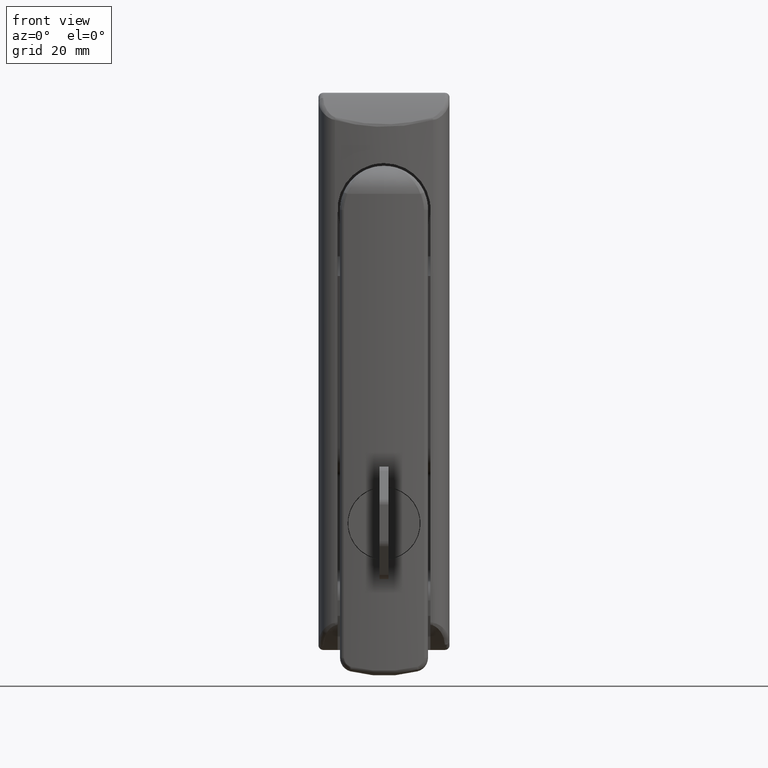
[diagram: clean part render]
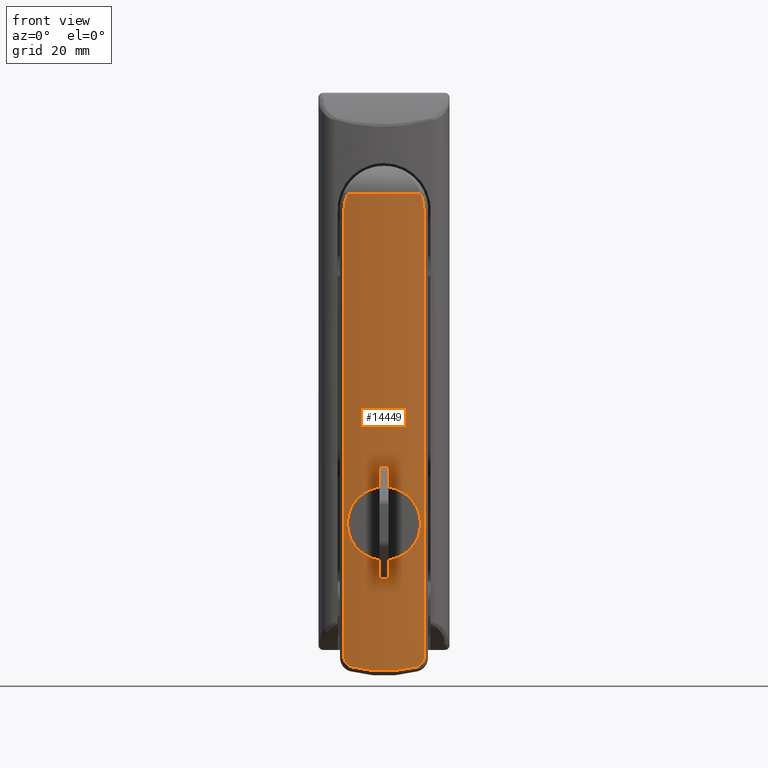
[diagram: same view with one face highlighted and labeled with its STEP entity id]
A machine part, front view. The second image highlights one B-rep face of the part: STEP entity #14449.
In plain terms, the highlighted cylindrical surface (partial cylindrical patch) has radius 60 mm, axis along (0, 0, 1).
Its self-contained STEP definition (entity closure, byte-faithful):
#14347 = VERTEX_POINT ( 'NONE', #22062 ) ;
#14349 = EDGE_CURVE ( 'NONE', #14384, #14347, #22079, .T. ) ;
#14361 = VERTEX_POINT ( 'NONE', #22122 ) ;
#14363 = EDGE_CURVE ( 'NONE', #14361, #14364, #22120, .T. ) ;
#14364 = VERTEX_POINT ( 'NONE', #22291 ) ;
#14384 = VERTEX_POINT ( 'NONE', #22207 ) ;
#14433 = EDGE_CURVE ( 'NONE', #14476, #14384, #22171, .T. ) ;
#14449 = ADVANCED_FACE ( 'NONE', ( #22356, #22355 ), #22353, .T. ) ;
#14450 = EDGE_LOOP ( 'NONE', ( #14451, #14453 ) ) ;
#14451 = ORIENTED_EDGE ( 'NONE', *, *, #14452, .F. ) ;
#14452 = EDGE_CURVE ( 'NONE', #14364, #14361, #22521, .T. ) ;
#14453 = ORIENTED_EDGE ( 'NONE', *, *, #14363, .F. ) ;
#14454 = EDGE_LOOP ( 'NONE', ( #14455, #14456, #14459, #14462, #14465, #14468, #14471, #14474, #14477 ) ) ;
#14455 = ORIENTED_EDGE ( 'NONE', *, *, #14349, .T. ) ;
#14456 = ORIENTED_EDGE ( 'NONE', *, *, #14457, .T. ) ;
#14457 = EDGE_CURVE ( 'NONE', #14347, #14458, #22522, .T. ) ;
#14458 = VERTEX_POINT ( 'NONE', #22458 ) ;
#14459 = ORIENTED_EDGE ( 'NONE', *, *, #14460, .T. ) ;
#14460 = EDGE_CURVE ( 'NONE', #14458, #14461, #22457, .T. ) ;
#14461 = VERTEX_POINT ( 'NONE', #22456 ) ;
#14462 = ORIENTED_EDGE ( 'NONE', *, *, #14464, .T. ) ;
#14463 = VERTEX_POINT ( 'NONE', #22455 ) ;
#14464 = EDGE_CURVE ( 'NONE', #14461, #14463, #22377, .T. ) ;
#14465 = ORIENTED_EDGE ( 'NONE', *, *, #14466, .T. ) ;
#14466 = EDGE_CURVE ( 'NONE', #14463, #14467, #22373, .T. ) ;
#14467 = VERTEX_POINT ( 'NONE', #22372 ) ;
#14468 = ORIENTED_EDGE ( 'NONE', *, *, #14469, .T. ) ;
#14469 = EDGE_CURVE ( 'NONE', #14467, #14470, #22446, .T. ) ;
#14470 = VERTEX_POINT ( 'NONE', #22371 ) ;
#14471 = ORIENTED_EDGE ( 'NONE', *, *, #14472, .T. ) ;
#14472 = EDGE_CURVE ( 'NONE', #14470, #14473, #22434, .T. ) ;
#14473 = VERTEX_POINT ( 'NONE', #22435 ) ;
#14474 = ORIENTED_EDGE ( 'NONE', *, *, #14475, .T. ) ;
#14475 = EDGE_CURVE ( 'NONE', #14473, #14476, #22433, .T. ) ;
#14476 = VERTEX_POINT ( 'NONE', #22515 ) ;
#14477 = ORIENTED_EDGE ( 'NONE', *, *, #14433, .T. ) ;
#21773 = CARTESIAN_POINT ( 'NONE',  ( -27.11787100293591700, -6.766868025251271000, -70.91263549066573500 ) ) ;
#21774 = CARTESIAN_POINT ( 'NONE',  ( -27.05421977766901200, -7.301004708283612900, -69.75693342376288800 ) ) ;
#21775 = CARTESIAN_POINT ( 'NONE',  ( -27.08980512825611300, -7.006723703889895700, -70.46514495383404200 ) ) ;
#21779 = CARTESIAN_POINT ( 'NONE',  ( -27.01683343835144400, -7.599279914989463900, -68.77638995952953800 ) ) ;
#21780 = CARTESIAN_POINT ( 'NONE',  ( -27.02474051801899100, -7.537300372957182600, -69.02352262754064300 ) ) ;
#21781 = CARTESIAN_POINT ( 'NONE',  ( -27.04340698613823700, -7.388390564444781800, -69.51340915960265900 ) ) ;
#21783 = CARTESIAN_POINT ( 'NONE',  ( -26.99088747816229600, -7.799635068534455800, -67.52116453693511700 ) ) ;
#21784 = CARTESIAN_POINT ( 'NONE',  ( -26.99764306470785500, -7.748583144098425600, -68.02855496580858100 ) ) ;
#21785 = CARTESIAN_POINT ( 'NONE',  ( -26.99744651862013000, -7.750083359168098900, -65.98271912644864300 ) ) ;
#21786 = CARTESIAN_POINT ( 'NONE',  ( -26.99079229069988300, -7.800361066417529800, -66.48981678743304300 ) ) ;
#21787 = CARTESIAN_POINT ( 'NONE',  ( -27.04298724013309800, -7.391769749059090300, -64.49652391511490600 ) ) ;
#21788 = CARTESIAN_POINT ( 'NONE',  ( -27.02438136217975300, -7.540133483668933300, -64.98703214651770600 ) ) ;
#21793 = CARTESIAN_POINT ( 'NONE',  ( -27.01651164701668500, -7.601797481766616300, -65.23440147297341700 ) ) ;
#21795 = CARTESIAN_POINT ( 'NONE',  ( -27.05376097270380600, -7.304741018422505200, -64.25299532304677500 ) ) ;
#21797 = CARTESIAN_POINT ( 'NONE',  ( -27.08922829495869100, -7.011606131907627500, -63.54478891864330600 ) ) ;
#21798 = CARTESIAN_POINT ( 'NONE',  ( -27.11724411078124000, -6.772376828360345200, -63.09684166632602100 ) ) ;
#21801 = CARTESIAN_POINT ( 'NONE',  ( -27.17953038254647400, -6.195189548565318600, -62.25390181002519100 ) ) ;
#21802 = CARTESIAN_POINT ( 'NONE',  ( -27.16338546205920700, -6.348279769270249100, -62.46080654831481400 ) ) ;
#21818 = CARTESIAN_POINT ( 'NONE',  ( -27.22902974148010800, -5.698728319907875300, -61.66811188794992700 ) ) ;
#21823 = CARTESIAN_POINT ( 'NONE',  ( -27.21240040461608000, -5.869919773109872500, -61.85705692926828900 ) ) ;
#21886 = CARTESIAN_POINT ( 'NONE',  ( -27.31176469672729500, -4.768159000811207800, -60.80582732110105600 ) ) ;
#21887 = CARTESIAN_POINT ( 'NONE',  ( -27.27877802638128600, -5.160202606548799600, -61.12884591638184900 ) ) ;
#22032 = CARTESIAN_POINT ( 'NONE',  ( 32.49999999993669800, -7.389644451905040300E-012, 3.399999999995630100 ) ) ;
#22062 = CARTESIAN_POINT ( 'NONE',  ( -27.50000000006329900, -7.389644451905040300E-012, 3.399999999995630100 ) ) ;
#22076 = DIRECTION ( 'NONE',  ( -1.000000000000000000, 0.0000000000000000000, 0.0000000000000000000 ) ) ;
#22077 = DIRECTION ( 'NONE',  ( 0.0000000000000000000, 0.0000000000000000000, -1.000000000000000000 ) ) ;
#22078 = AXIS2_PLACEMENT_3D ( 'NONE', #22032, #22077, #22076 ) ;
#22079 = CIRCLE ( 'NONE', #22078, 60.00000000000000000 ) ;
#22092 = CARTESIAN_POINT ( 'NONE',  ( -27.17939958509406400, -6.200831473000096000, -71.75908692896435100 ) ) ;
#22093 = CARTESIAN_POINT ( 'NONE',  ( -27.21311665318097500, -5.871473062248581300, -72.15986918590186900 ) ) ;
#22094 = CARTESIAN_POINT ( 'NONE',  ( -27.27948607680289300, -5.152042386320114400, -72.87834204396905600 ) ) ;
#22095 = CARTESIAN_POINT ( 'NONE',  ( -27.31244244180833600, -4.759634483160981600, -73.20067236749267200 ) ) ;
#22096 = CARTESIAN_POINT ( 'NONE',  ( -27.35871234207811800, -4.120698311094366200, -73.62762853398807300 ) ) ;
#22097 = CARTESIAN_POINT ( 'NONE',  ( -27.37359247457624200, -3.899204812795849900, -73.76027638655459400 ) ) ;
#22098 = CARTESIAN_POINT ( 'NONE',  ( -27.40121571737307000, -3.448946152739576400, -74.00070749497805900 ) ) ;
#22099 = CARTESIAN_POINT ( 'NONE',  ( -27.42688059758014400, -2.989070435906781700, -74.21794343199856300 ) ) ;
#22100 = CARTESIAN_POINT ( 'NONE',  ( -27.44796606205341800, -2.510201788648187100, -74.38945525715693900 ) ) ;
#22101 = CARTESIAN_POINT ( 'NONE',  ( -27.46642850682681900, -2.021682500409243600, -74.53776902569957500 ) ) ;
#22102 = CARTESIAN_POINT ( 'NONE',  ( -27.47437996735683200, -1.771217474951664300, -74.60057321537496500 ) ) ;
#22103 = CARTESIAN_POINT ( 'NONE',  ( -27.49351807082013700, -1.015699125321913200, -74.75061632840478900 ) ) ;
#22104 = CARTESIAN_POINT ( 'NONE',  ( -27.50000000006336600, -0.5092173538682640600, -74.80000000000183000 ) ) ;
#22105 = CARTESIAN_POINT ( 'NONE',  ( -27.50000000006329900, -2.746651659572230200E-014, -74.80000000000181600 ) ) ;
#22120 = B_SPLINE_CURVE_WITH_KNOTS ( 'NONE', 3,
 ( #22105, #22104, #22103, #22102, #22101, #22100, #22099, #22098, #22097, #22096, #22095, #22094, #22093, #22092, #21773, #21775, #21774, #21781, #21780, #21779, #21784, #21783, #21786, #21785, #21793, #21788, #21787, #21795, #21797, #21798, #21802, #21801, #21823, #21818, #21887, #21886, #22265, #22350, #22333, #22264, #22292, #22218, #22244, #22201, #22332, #22349 ),
 .UNSPECIFIED., .F., .F.,
 ( 4, 2, 2, 1, 2, 2, 2, 2, 2, 2, 2, 2, 2, 2, 2, 2, 2, 2, 2, 2, 1, 2, 2, 4 ),
 ( 0.02441218290192581300, 0.02593757735197770400, 0.02670027457700365300, 0.02746297180202959800, 0.02822566902705554400, 0.02898836625208148900, 0.03051376070213340100, 0.03203915515218531300, 0.03356454960223722400, 0.03432724682726318000, 0.03508994405228913600, 0.03661533850234104100, 0.03814073295239295300, 0.03890343017741889500, 0.03966612740244482300, 0.04119152185249669300, 0.04195421907752263500, 0.04271691630254857000, 0.04424231075260043300, 0.04500500797762636800, 0.04576770520265230300, 0.04653040242767823900, 0.04729309965270417400, 0.04881849410275604400 ),
 .UNSPECIFIED. ) ;
#22122 = CARTESIAN_POINT ( 'NONE',  ( -27.50000000006329900, -2.746651659572230200E-014, -74.80000000000181600 ) ) ;
#22171 = B_SPLINE_CURVE_WITH_KNOTS ( 'NONE', 3,
 ( #22397, #22409, #22540, #22541, #22381, #22536 ),
 .UNSPECIFIED., .F., .F.,
 ( 4, 2, 4 ),
 ( 0.0000000000000000000, 0.001741086959644389800, 0.003482173919288779500 ),
 .UNSPECIFIED. ) ;
#22201 = CARTESIAN_POINT ( 'NONE',  ( -27.49335055274015000, -1.025734805501864000, -59.25067037842426000 ) ) ;
#22207 = CARTESIAN_POINT ( 'NONE',  ( -26.98935241583240000, -7.811334658849309800, 3.399999999995630100 ) ) ;
#22218 = CARTESIAN_POINT ( 'NONE',  ( -27.46607260641565800, -2.032209205236538400, -59.46505926026952000 ) ) ;
#22244 = CARTESIAN_POINT ( 'NONE',  ( -27.47406654079844700, -1.781825797992873800, -59.40189778995117100 ) ) ;
#22264 = CARTESIAN_POINT ( 'NONE',  ( -27.42636729121496600, -2.999303450236467500, -59.78631170724680300 ) ) ;
#22265 = CARTESIAN_POINT ( 'NONE',  ( -27.35814228879709400, -4.128975155928238800, -60.37751232390968400 ) ) ;
#22291 = CARTESIAN_POINT ( 'NONE',  ( -27.50000000006329900, -2.644541506974269600E-014, -59.20000000000180100 ) ) ;
#22292 = CARTESIAN_POINT ( 'NONE',  ( -27.44752610784949800, -2.520684756265684900, -59.61411111885452400 ) ) ;
#22332 = CARTESIAN_POINT ( 'NONE',  ( -27.50000000006336300, -0.5158276068708352900, -59.20000000000180100 ) ) ;
#22333 = CARTESIAN_POINT ( 'NONE',  ( -27.40065980705396600, -3.458562259660451900, -60.00404766860691600 ) ) ;
#22349 = CARTESIAN_POINT ( 'NONE',  ( -27.50000000006329900, -2.644541506974269600E-014, -59.20000000000180100 ) ) ;
#22350 = CARTESIAN_POINT ( 'NONE',  ( -27.37301508624838000, -3.908038217090001400, -60.24483610703363500 ) ) ;
#22351 = CARTESIAN_POINT ( 'NONE',  ( 32.49999999993669800, -7.389644451905040300E-012, -987.5000000000000000 ) ) ;
#22352 = AXIS2_PLACEMENT_3D ( 'NONE', #22351, #22354, #22523 ) ;
#22353 = CYLINDRICAL_SURFACE ( 'NONE', #22352, 59.99999999999999300 ) ;
#22354 = DIRECTION ( 'NONE',  ( 0.0000000000000000000, 0.0000000000000000000, 1.000000000000000000 ) ) ;
#22355 = FACE_OUTER_BOUND ( 'NONE', #14454, .T. ) ;
#22356 = FACE_BOUND ( 'NONE', #14450, .T. ) ;
#22364 = CARTESIAN_POINT ( 'NONE',  ( -26.98911036061097600, 7.815411012498076500, -97.21485045667711200 ) ) ;
#22365 = CARTESIAN_POINT ( 'NONE',  ( -26.96741987155583700, 7.977794936957475400, -97.06729100773125700 ) ) ;
#22366 = CARTESIAN_POINT ( 'NONE',  ( -26.92989996831414200, 8.252649755819263100, -96.71905625125302200 ) ) ;
#22367 = CARTESIAN_POINT ( 'NONE',  ( -26.91496646204097600, 8.358663578608801700, -96.52676034020481700 ) ) ;
#22368 = CARTESIAN_POINT ( 'NONE',  ( -26.89412847297579700, 8.505468796101562000, -96.10647495946383900 ) ) ;
#22369 = CARTESIAN_POINT ( 'NONE',  ( -26.88878568857309800, 8.542372881356040900, -95.88993434012675700 ) ) ;
#22370 = CARTESIAN_POINT ( 'NONE',  ( -26.88878568857310100, 8.542372881356039100, -95.66691953890860100 ) ) ;
#22371 = CARTESIAN_POINT ( 'NONE',  ( -27.08683591653195000, -7.029152542372770500, -97.60027310202110600 ) ) ;
#22372 = CARTESIAN_POINT ( 'NONE',  ( -27.08683591653020200, 7.029152542372989900, -97.60027310202110600 ) ) ;
#22373 = B_SPLINE_CURVE_WITH_KNOTS ( 'NONE', 3,
 ( #22370, #22369, #22368, #22367, #22366, #22365, #22364, #22449, #22448, #22447 ),
 .UNSPECIFIED., .F., .F.,
 ( 4, 2, 2, 2, 4 ),
 ( 0.0000000000000000000, 0.0006591826754098284500, 0.001318365350819656900, 0.001977548026229485600, 0.002636730701639313800 ),
 .UNSPECIFIED. ) ;
#22374 = DIRECTION ( 'NONE',  ( 0.0000000000000000000, 0.0000000000000000000, -1.000000000000000000 ) ) ;
#22375 = VECTOR ( 'NONE', #22374, 1000.000000000000000 ) ;
#22376 = CARTESIAN_POINT ( 'NONE',  ( -26.88878568857310100, 8.542372881356028500, -987.5000000000000000 ) ) ;
#22377 = LINE ( 'NONE', #22376, #22375 ) ;
#22378 = CARTESIAN_POINT ( 'NONE',  ( -26.88878568857310100, 8.542372881356028500, -4.376707329889485900E-012 ) ) ;
#22381 = CARTESIAN_POINT ( 'NONE',  ( -26.95765433365490800, -8.052740060604362400, 2.863716007657407700 ) ) ;
#22397 = CARTESIAN_POINT ( 'NONE',  ( -26.88878568857525100, -8.542372881355808200, -4.376707329889485900E-012 ) ) ;
#22409 = CARTESIAN_POINT ( 'NONE',  ( -26.88878568857525100, -8.542372881355810000, 0.5890378738621803200 ) ) ;
#22425 = CARTESIAN_POINT ( 'NONE',  ( -26.93008124496458000, -8.251340270082119200, -96.72102347348983600 ) ) ;
#22426 = CARTESIAN_POINT ( 'NONE',  ( -26.96753254486046800, -7.976950925117357400, -97.06804978835468500 ) ) ;
#22427 = CARTESIAN_POINT ( 'NONE',  ( -26.98925597603356500, -7.814306797277804900, -97.21576535315573200 ) ) ;
#22428 = CARTESIAN_POINT ( 'NONE',  ( -27.03680785197927200, -7.443351268113636900, -97.45651469645679300 ) ) ;
#22429 = CARTESIAN_POINT ( 'NONE',  ( -27.06155778479657300, -7.243437817718970900, -97.54447084455887300 ) ) ;
#22430 = CARTESIAN_POINT ( 'NONE',  ( -27.08683591653195000, -7.029152542372770500, -97.60027310202110600 ) ) ;
#22431 = VECTOR ( 'NONE', #22516, 1000.000000000000000 ) ;
#22432 = CARTESIAN_POINT ( 'NONE',  ( -26.88878568857525100, -8.542372881355808200, -987.5000000000000000 ) ) ;
#22433 = LINE ( 'NONE', #22432, #22431 ) ;
#22434 = B_SPLINE_CURVE_WITH_KNOTS ( 'NONE', 3,
 ( #22430, #22429, #22428, #22427, #22426, #22425, #22520, #22519, #22518, #22517 ),
 .UNSPECIFIED., .F., .F.,
 ( 4, 2, 2, 2, 4 ),
 ( 0.0000000000000000000, 0.0006593962300814261600, 0.001318792460162852300, 0.001978188690244278500, 0.002637584920325704600 ),
 .UNSPECIFIED. ) ;
#22435 = CARTESIAN_POINT ( 'NONE',  ( -26.88878568857525100, -8.542372881355808200, -95.66691953890860100 ) ) ;
#22436 = CARTESIAN_POINT ( 'NONE',  ( -27.08683591653195000, -7.029152542372770500, -97.60027310202110600 ) ) ;
#22437 = CARTESIAN_POINT ( 'NONE',  ( -27.22243562377369100, -5.879660131013668700, -97.89961364880339500 ) ) ;
#22438 = CARTESIAN_POINT ( 'NONE',  ( -27.32595773004909400, -4.716452143415905200, -98.12428480850550700 ) ) ;
#22439 = CARTESIAN_POINT ( 'NONE',  ( -27.43028710844410500, -2.950969652481609800, -98.34995659707946900 ) ) ;
#22440 = CARTESIAN_POINT ( 'NONE',  ( -27.45656686804713700, -2.359020981341446900, -98.40656531010333200 ) ) ;
#22441 = CARTESIAN_POINT ( 'NONE',  ( -27.49158670450341900, -1.168081876005278900, -98.48193783825954000 ) ) ;
#22442 = CARTESIAN_POINT ( 'NONE',  ( -27.50021647360937700, -0.5708536150783215500, -98.50046515099695900 ) ) ;
#22443 = CARTESIAN_POINT ( 'NONE',  ( -27.49911335496311100, 2.394996488833090400, -98.49809480716419300 ) ) ;
#22444 = CARTESIAN_POINT ( 'NONE',  ( -27.35799406664051500, 4.730517521918068600, -98.19886310320463000 ) ) ;
#22445 = CARTESIAN_POINT ( 'NONE',  ( -27.08683591653020200, 7.029152542372989900, -97.60027310202110600 ) ) ;
#22446 = B_SPLINE_CURVE_WITH_KNOTS ( 'NONE', 3,
 ( #22445, #22444, #22443, #22442, #22441, #22440, #22439, #22438, #22437, #22436 ),
 .UNSPECIFIED., .F., .F.,
 ( 4, 2, 2, 2, 4 ),
 ( 0.0000000000000000000, 0.007073700209561548300, 0.008842125261951933400, 0.01061055031434232100, 0.01414740041912309000 ),
 .UNSPECIFIED. ) ;
#22447 = CARTESIAN_POINT ( 'NONE',  ( -27.08683591653020200, 7.029152542372989900, -97.60027310202110600 ) ) ;
#22448 = CARTESIAN_POINT ( 'NONE',  ( -27.06155792498609400, 7.243436629303092300, -97.54447115403559100 ) ) ;
#22449 = CARTESIAN_POINT ( 'NONE',  ( -27.03662496838388300, 7.444809478102796700, -97.45576521869185200 ) ) ;
#22450 = CARTESIAN_POINT ( 'NONE',  ( -26.88878568857310100, 8.542372881356049800, 0.5890126477628925300 ) ) ;
#22451 = CARTESIAN_POINT ( 'NONE',  ( -26.89803633101485800, 8.478713617486510800, 1.176580059809359000 ) ) ;
#22452 = CARTESIAN_POINT ( 'NONE',  ( -26.93249501444539000, 8.233701533687321800, 2.311650984047681800 ) ) ;
#22453 = CARTESIAN_POINT ( 'NONE',  ( -26.95765706095873400, 8.052719290062142900, 2.863762149580308500 ) ) ;
#22454 = CARTESIAN_POINT ( 'NONE',  ( -26.98935241583044900, 7.811334658849550500, 3.399999999995630100 ) ) ;
#22455 = CARTESIAN_POINT ( 'NONE',  ( -26.88878568857310100, 8.542372881356039100, -95.66691953890860100 ) ) ;
#22456 = CARTESIAN_POINT ( 'NONE',  ( -26.88878568857310100, 8.542372881356028500, -4.376707329889485900E-012 ) ) ;
#22457 = B_SPLINE_CURVE_WITH_KNOTS ( 'NONE', 3,
 ( #22454, #22453, #22452, #22451, #22450, #22378 ),
 .UNSPECIFIED., .F., .F.,
 ( 4, 2, 4 ),
 ( 0.0000000000000000000, 0.001741119715717517300, 0.003482239431435034700 ),
 .UNSPECIFIED. ) ;
#22458 = CARTESIAN_POINT ( 'NONE',  ( -26.98935241583044900, 7.811334658849550500, 3.399999999995630100 ) ) ;
#22459 = DIRECTION ( 'NONE',  ( -1.000000000000000000, 0.0000000000000000000, 0.0000000000000000000 ) ) ;
#22460 = DIRECTION ( 'NONE',  ( 0.0000000000000000000, 0.0000000000000000000, -1.000000000000000000 ) ) ;
#22461 = CARTESIAN_POINT ( 'NONE',  ( 32.49999999993669800, -7.389644451905040300E-012, 3.399999999995630100 ) ) ;
#22462 = AXIS2_PLACEMENT_3D ( 'NONE', #22461, #22460, #22459 ) ;
#22464 = CARTESIAN_POINT ( 'NONE',  ( -27.50000000006329900, -2.746651659572230200E-014, -74.80000000000181600 ) ) ;
#22465 = CARTESIAN_POINT ( 'NONE',  ( -27.50000000006323100, 0.5093398620207170200, -74.80000000000180200 ) ) ;
#22466 = CARTESIAN_POINT ( 'NONE',  ( -27.49330214517220500, 1.026748279166608900, -74.74894306535040300 ) ) ;
#22467 = CARTESIAN_POINT ( 'NONE',  ( -27.46782430923636300, 2.027452077667176500, -74.54915682255811800 ) ) ;
#22468 = CARTESIAN_POINT ( 'NONE',  ( -27.44918397824277900, 2.513728830352405900, -74.40151236602437700 ) ) ;
#22469 = CARTESIAN_POINT ( 'NONE',  ( -27.41389448009753600, 3.221974752511915300, -74.10803652061760300 ) ) ;
#22470 = CARTESIAN_POINT ( 'NONE',  ( -27.40082862002633500, 3.455701977215853000, -73.99740526291682800 ) ) ;
#22471 = CARTESIAN_POINT ( 'NONE',  ( -27.37307631765006700, 3.907157250730850500, -73.75571452822646300 ) ) ;
#22472 = CARTESIAN_POINT ( 'NONE',  ( -27.35837706012367200, 4.125468035234055400, -73.62457579847439600 ) ) ;
#22473 = CARTESIAN_POINT ( 'NONE',  ( -27.31248802443042600, 4.758722457919942500, -73.20100996985957000 ) ) ;
#22474 = CARTESIAN_POINT ( 'NONE',  ( -27.27949700685488200, 5.152201444547238800, -72.87873274642147700 ) ) ;
#22475 = CARTESIAN_POINT ( 'NONE',  ( -27.21233159881047200, 5.879702131183705700, -72.15109515322649300 ) ) ;
#22476 = CARTESIAN_POINT ( 'NONE',  ( -27.17922429972989600, 6.202483076101970000, -71.75680399395729100 ) ) ;
#22477 = CARTESIAN_POINT ( 'NONE',  ( -27.13319598701774300, 6.625865129265550400, -71.12339743723038100 ) ) ;
#22478 = CARTESIAN_POINT ( 'NONE',  ( -27.11844600123245300, 6.756897339787367500, -70.90510171110966600 ) ) ;
#22479 = CARTESIAN_POINT ( 'NONE',  ( -27.09058885098934900, 6.998320202350994300, -70.45383777556236300 ) ) ;
#22480 = CARTESIAN_POINT ( 'NONE',  ( -27.07745257050160200, 7.108927745773973700, -70.22002094560454600 ) ) ;
#22488 = CARTESIAN_POINT ( 'NONE',  ( -27.04194795722803200, 7.402382547291230400, -69.51123216023324900 ) ) ;
#22489 = CARTESIAN_POINT ( 'NONE',  ( -27.02318276524975400, 7.549888817283991700, -69.02473145477833300 ) ) ;
#22490 = CARTESIAN_POINT ( 'NONE',  ( -26.99754720040723300, 7.749321569917199800, -68.02390127616440900 ) ) ;
#22491 = CARTESIAN_POINT ( 'NONE',  ( -26.99081504130545300, 7.800187546756972300, -67.50646352176468700 ) ) ;
#22492 = CARTESIAN_POINT ( 'NONE',  ( -26.99086436023897300, 7.799811389709762300, -66.48777607590915300 ) ) ;
#22493 = CARTESIAN_POINT ( 'NONE',  ( -26.99743156022601200, 7.750215935769648300, -65.98126837661907000 ) ) ;
#22494 = CARTESIAN_POINT ( 'NONE',  ( -27.01675567257249400, 7.599891219325977300, -65.22586112513997100 ) ) ;
#22495 = CARTESIAN_POINT ( 'NONE',  ( -27.02478455027140200, 7.536950858468322200, -64.97526061137794800 ) ) ;
#22496 = CARTESIAN_POINT ( 'NONE',  ( -27.04340635906717000, 7.388393814503737100, -64.48666860987151500 ) ) ;
#22497 = CARTESIAN_POINT ( 'NONE',  ( -27.06465720944602500, 7.216659958753964200, -64.00784027408053600 ) ) ;
#22498 = CARTESIAN_POINT ( 'NONE',  ( -27.09047308228234400, 6.999297701435288000, -63.54820350154627600 ) ) ;
#22499 = CARTESIAN_POINT ( 'NONE',  ( -27.11822758839492700, 6.758815702612896100, -63.09827247515072200 ) ) ;
#22500 = CARTESIAN_POINT ( 'NONE',  ( -27.13316010735369600, 6.626218818186401000, -62.87701849647454800 ) ) ;
#22501 = CARTESIAN_POINT ( 'NONE',  ( -27.17964423362150900, 6.198572818729779500, -62.23757370339974000 ) ) ;
#22502 = CARTESIAN_POINT ( 'NONE',  ( -27.21267894820421400, 5.875899169486114500, -61.84518183429739900 ) ) ;
#22503 = CARTESIAN_POINT ( 'NONE',  ( -27.27903549076551600, 5.157240930487356300, -61.12622716166786300 ) ) ;
#22504 = CARTESIAN_POINT ( 'NONE',  ( -27.31268443014332400, 4.756395618598548800, -60.79706456330729500 ) ) ;
#22505 = CARTESIAN_POINT ( 'NONE',  ( -27.37404518416813200, 3.908865731225123200, -60.23091763917340600 ) ) ;
#22506 = CARTESIAN_POINT ( 'NONE',  ( -27.40195986530037300, 3.461031549167982800, -59.99124722661094500 ) ) ;
#22507 = CARTESIAN_POINT ( 'NONE',  ( -27.43728738353578900, 2.752719542780346800, -59.69740636318294200 ) ) ;
#22508 = CARTESIAN_POINT ( 'NONE',  ( -27.44801399643505500, 2.509146323023616200, -59.61015382488585600 ) ) ;
#22509 = CARTESIAN_POINT ( 'NONE',  ( -27.46652961012526000, 2.018792685021559800, -59.46142467988181600 ) ) ;
#22510 = CARTESIAN_POINT ( 'NONE',  ( -27.47436255354338600, 1.771466162284018400, -59.39956669708694600 ) ) ;
#22511 = CARTESIAN_POINT ( 'NONE',  ( -27.49335082393287500, 1.023172109552684200, -59.25068816868854100 ) ) ;
#22512 = CARTESIAN_POINT ( 'NONE',  ( -27.50000000006324200, 0.5159517053262778800, -59.20000000000180100 ) ) ;
#22513 = CARTESIAN_POINT ( 'NONE',  ( -27.50000000006329900, -2.644541506974269600E-014, -59.20000000000180100 ) ) ;
#22515 = CARTESIAN_POINT ( 'NONE',  ( -26.88878568857525100, -8.542372881355808200, -4.376707329889485900E-012 ) ) ;
#22516 = DIRECTION ( 'NONE',  ( 0.0000000000000000000, 0.0000000000000000000, 1.000000000000000000 ) ) ;
#22517 = CARTESIAN_POINT ( 'NONE',  ( -26.88878568857525100, -8.542372881355808200, -95.66691953890860100 ) ) ;
#22518 = CARTESIAN_POINT ( 'NONE',  ( -26.88878568857524700, -8.542372881355806400, -95.88993962197150700 ) ) ;
#22519 = CARTESIAN_POINT ( 'NONE',  ( -26.89424405532600600, -8.504660122106823600, -96.10944161137058500 ) ) ;
#22520 = CARTESIAN_POINT ( 'NONE',  ( -26.91503149375793300, -8.358199763820898900, -96.52743097479013600 ) ) ;
#22521 = B_SPLINE_CURVE_WITH_KNOTS ( 'NONE', 3,
 ( #22513, #22512, #22511, #22510, #22509, #22508, #22507, #22506, #22505, #22504, #22503, #22502, #22501, #22500, #22499, #22498, #22497, #22496, #22495, #22494, #22493, #22492, #22491, #22490, #22489, #22488, #22480, #22479, #22478, #22477, #22476, #22475, #22474, #22473, #22472, #22471, #22470, #22469, #22468, #22467, #22466, #22465, #22464 ),
 .UNSPECIFIED., .F., .F.,
 ( 4, 2, 2, 2, 2, 2, 2, 2, 1, 2, 2, 2, 2, 2, 2, 2, 2, 2, 2, 2, 2, 4 ),
 ( 1.920278778587543900E-018, 0.001525761431370330800, 0.002288642147055497600, 0.003051522862740665000, 0.004577284294111004700, 0.006103045725481345700, 0.007628807156851687500, 0.008391687872536865800, 0.009154568588222044100, 0.009917449303907224100, 0.01068033001959240400, 0.01220609145096280400, 0.01373185288233320200, 0.01525761431370360200, 0.01602049502938878200, 0.01678337574507396400, 0.01830913717644432400, 0.01983489860781468800, 0.02059777932349988000, 0.02136066003918507200, 0.02288642147055544600, 0.02441218290192581300 ),
 .UNSPECIFIED. ) ;
#22522 = CIRCLE ( 'NONE', #22462, 60.00000000000000000 ) ;
#22523 = DIRECTION ( 'NONE',  ( 1.000000000000000000, 0.0000000000000000000, 0.0000000000000000000 ) ) ;
#22536 = CARTESIAN_POINT ( 'NONE',  ( -26.98935241583240000, -7.811334658849309800, 3.399999999995630100 ) ) ;
#22540 = CARTESIAN_POINT ( 'NONE',  ( -26.89784242097500300, -8.480062409050422200, 1.167148136703907400 ) ) ;
#22541 = CARTESIAN_POINT ( 'NONE',  ( -26.93212660336809000, -8.236350534647927500, 2.302510620423296600 ) ) ;